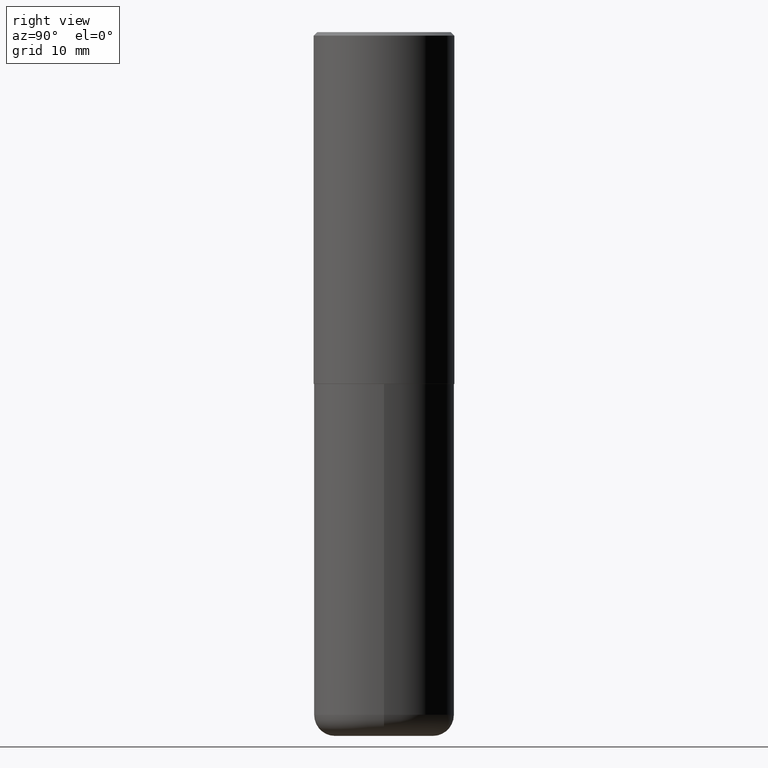
[diagram: clean part render]
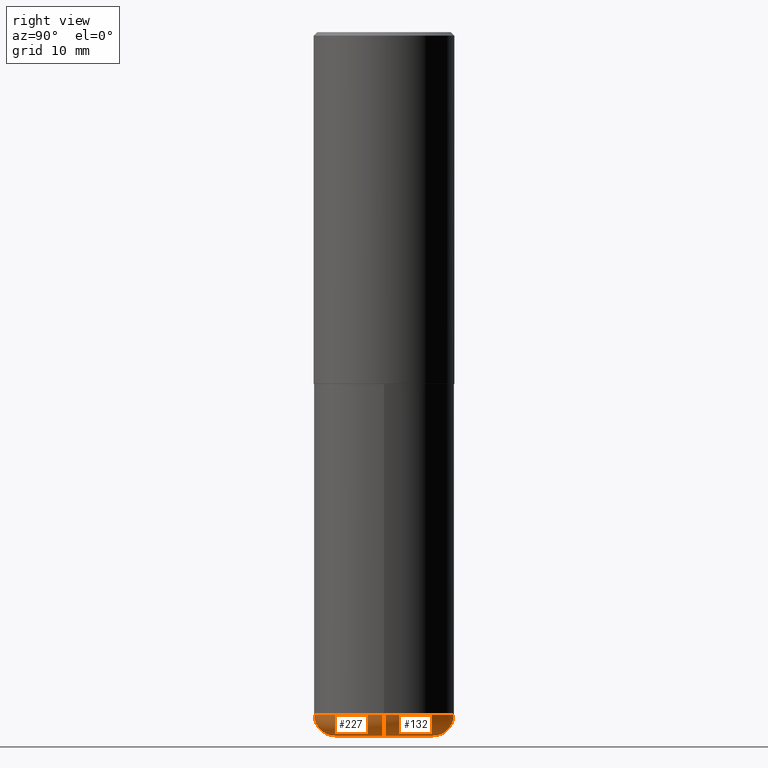
[diagram: same view with one multi-face feature highlighted, each face labeled with its STEP entity id]
A machine part, right view. The highlighted faces form ONE feature: a constant-radius fillet chain: 2 tangent blend faces with common blend radius 2.9997 mm. The faces share edges in the B-rep.
Their STEP definitions:
[1] entity #227 (Torus):
#13 = CARTESIAN_POINT ( 'NONE',  ( 9.339000823940418668E-29, -1.333361808490808928E-14, -3.818900000000000183 ) ) ;
#14 = EDGE_LOOP ( 'NONE', ( #304, #341, #73, #308 ) ) ;
#41 = CARTESIAN_POINT ( 'NONE',  ( -0.2756000000000000116, -1.137536230515325427E-14, -3.818900000000000183 ) ) ;
#46 = DIRECTION ( 'NONE',  ( -1.000000000000000000, 7.105427357601005014E-15, 0.000000000000000000 ) ) ;
#47 = VERTEX_POINT ( 'NONE', #102 ) ;
#48 = CARTESIAN_POINT ( 'NONE',  ( -0.2756000000000000116, -1.116195879274560421E-14, -3.937000000000000277 ) ) ;
#73 = ORIENTED_EDGE ( 'NONE', *, *, #375, .T. ) ;
#81 = CARTESIAN_POINT ( 'NONE',  ( 9.627810689950883669E-29, -1.374596203102546341E-14, -3.937000000000000277 ) ) ;
#94 = CIRCLE ( 'NONE', #250, 0.1180999999999999966 ) ;
#101 = AXIS2_PLACEMENT_3D ( 'NONE', #119, #109, #336 ) ;
#102 = CARTESIAN_POINT ( 'NONE',  ( -0.3937000000000000499, -1.053621133422057529E-14, -3.818900000000000183 ) ) ;
#103 = EDGE_CURVE ( 'NONE', #150, #47, #94, .T. ) ;
#108 = EDGE_CURVE ( 'NONE', #150, #291, #295, .T. ) ;
#109 = DIRECTION ( 'NONE',  ( -2.445468806185136597E-29, 3.491481338843145583E-15, 1.000000000000000000 ) ) ;
#115 = DIRECTION ( 'NONE',  ( -2.445468806185136597E-29, 3.491481338843145583E-15, 1.000000000000000000 ) ) ;
#116 = AXIS2_PLACEMENT_3D ( 'NONE', #81, #115, #236 ) ;
#119 = CARTESIAN_POINT ( 'NONE',  ( 9.339000823940418668E-29, -1.333361808490808928E-14, -3.818900000000000183 ) ) ;
#121 = CARTESIAN_POINT ( 'NONE',  ( 0.2756000000000000116, -1.567046654499579837E-14, -3.937000000000000277 ) ) ;
#128 = DIRECTION ( 'NONE',  ( 1.000000000000000000, -6.982962677686273021E-15, 0.000000000000000000 ) ) ;
#150 = VERTEX_POINT ( 'NONE', #48 ) ;
#191 = TOROIDAL_SURFACE ( 'NONE', #101, 0.2756000000000000116, 0.1181000000000000105 ) ;
#201 = EDGE_CURVE ( 'NONE', #47, #228, #305, .T. ) ;
#213 = AXIS2_PLACEMENT_3D ( 'NONE', #13, #397, #292 ) ;
#222 = AXIS2_PLACEMENT_3D ( 'NONE', #313, #282, #128 ) ;
#227 = ADVANCED_FACE ( 'NONE', ( #404 ), #191, .T. ) ;
#228 = VERTEX_POINT ( 'NONE', #366 ) ;
#236 = DIRECTION ( 'NONE',  ( 1.000000000000000000, -6.982962677686265922E-15, 0.000000000000000000 ) ) ;
#242 = DIRECTION ( 'NONE',  ( 7.105427357601001859E-15, 1.000000000000000000, -3.491481338843145583E-15 ) ) ;
#250 = AXIS2_PLACEMENT_3D ( 'NONE', #41, #242, #46 ) ;
#282 = DIRECTION ( 'NONE',  ( -6.982962677686266711E-15, -1.000000000000000000, 3.491481338843145583E-15 ) ) ;
#291 = VERTEX_POINT ( 'NONE', #121 ) ;
#292 = DIRECTION ( 'NONE',  ( 1.000000000000000000, -6.982962677686267499E-15, 0.000000000000000000 ) ) ;
#295 = CIRCLE ( 'NONE', #116, 0.2756000000000000116 ) ;
#304 = ORIENTED_EDGE ( 'NONE', *, *, #103, .F. ) ;
#305 = CIRCLE ( 'NONE', #213, 0.3937000000000000499 ) ;
#308 = ORIENTED_EDGE ( 'NONE', *, *, #201, .F. ) ;
#313 = CARTESIAN_POINT ( 'NONE',  ( 0.2756000000000000116, -1.525812259887842581E-14, -3.818900000000000183 ) ) ;
#336 = DIRECTION ( 'NONE',  ( 1.000000000000000000, -6.982962677686268288E-15, 4.883557194083112901E-29 ) ) ;
#341 = ORIENTED_EDGE ( 'NONE', *, *, #108, .T. ) ;
#366 = CARTESIAN_POINT ( 'NONE',  ( 0.3937000000000000499, -1.608281049111317408E-14, -3.818900000000000183 ) ) ;
#375 = EDGE_CURVE ( 'NONE', #291, #228, #403, .T. ) ;
#397 = DIRECTION ( 'NONE',  ( -2.445468806185136597E-29, 3.491481338843145583E-15, 1.000000000000000000 ) ) ;
#403 = CIRCLE ( 'NONE', #222, 0.1180999999999999966 ) ;
#404 = FACE_OUTER_BOUND ( 'NONE', #14, .T. ) ;
[2] entity #132 (Torus):
#10 = DIRECTION ( 'NONE',  ( 1.000000000000000000, -6.982962677686268288E-15, 4.883557194083112901E-29 ) ) ;
#35 = ORIENTED_EDGE ( 'NONE', *, *, #103, .T. ) ;
#41 = CARTESIAN_POINT ( 'NONE',  ( -0.2756000000000000116, -1.137536230515325427E-14, -3.818900000000000183 ) ) ;
#46 = DIRECTION ( 'NONE',  ( -1.000000000000000000, 7.105427357601005014E-15, 0.000000000000000000 ) ) ;
#47 = VERTEX_POINT ( 'NONE', #102 ) ;
#48 = CARTESIAN_POINT ( 'NONE',  ( -0.2756000000000000116, -1.116195879274560421E-14, -3.937000000000000277 ) ) ;
#50 = DIRECTION ( 'NONE',  ( 1.000000000000000000, -6.982962677686267499E-15, 0.000000000000000000 ) ) ;
#88 = DIRECTION ( 'NONE',  ( -2.445468806185136597E-29, 3.491481338843145583E-15, 1.000000000000000000 ) ) ;
#94 = CIRCLE ( 'NONE', #250, 0.1180999999999999966 ) ;
#102 = CARTESIAN_POINT ( 'NONE',  ( -0.3937000000000000499, -1.053621133422057529E-14, -3.818900000000000183 ) ) ;
#103 = EDGE_CURVE ( 'NONE', #150, #47, #94, .T. ) ;
#121 = CARTESIAN_POINT ( 'NONE',  ( 0.2756000000000000116, -1.567046654499579837E-14, -3.937000000000000277 ) ) ;
#128 = DIRECTION ( 'NONE',  ( 1.000000000000000000, -6.982962677686273021E-15, 0.000000000000000000 ) ) ;
#132 = ADVANCED_FACE ( 'NONE', ( #372 ), #411, .T. ) ;
#136 = ORIENTED_EDGE ( 'NONE', *, *, #362, .T. ) ;
#150 = VERTEX_POINT ( 'NONE', #48 ) ;
#154 = CARTESIAN_POINT ( 'NONE',  ( 9.339000823940418668E-29, -1.333361808490808928E-14, -3.818900000000000183 ) ) ;
#160 = ORIENTED_EDGE ( 'NONE', *, *, #293, .F. ) ;
#166 = AXIS2_PLACEMENT_3D ( 'NONE', #380, #414, #189 ) ;
#180 = AXIS2_PLACEMENT_3D ( 'NONE', #238, #271, #10 ) ;
#189 = DIRECTION ( 'NONE',  ( 1.000000000000000000, -6.982962677686265922E-15, 0.000000000000000000 ) ) ;
#196 = AXIS2_PLACEMENT_3D ( 'NONE', #154, #88, #50 ) ;
#222 = AXIS2_PLACEMENT_3D ( 'NONE', #313, #282, #128 ) ;
#228 = VERTEX_POINT ( 'NONE', #366 ) ;
#238 = CARTESIAN_POINT ( 'NONE',  ( 9.339000823940418668E-29, -1.333361808490808928E-14, -3.818900000000000183 ) ) ;
#242 = DIRECTION ( 'NONE',  ( 7.105427357601001859E-15, 1.000000000000000000, -3.491481338843145583E-15 ) ) ;
#250 = AXIS2_PLACEMENT_3D ( 'NONE', #41, #242, #46 ) ;
#271 = DIRECTION ( 'NONE',  ( -2.445468806185136597E-29, 3.491481338843145583E-15, 1.000000000000000000 ) ) ;
#282 = DIRECTION ( 'NONE',  ( -6.982962677686266711E-15, -1.000000000000000000, 3.491481338843145583E-15 ) ) ;
#291 = VERTEX_POINT ( 'NONE', #121 ) ;
#293 = EDGE_CURVE ( 'NONE', #228, #47, #376, .T. ) ;
#296 = CIRCLE ( 'NONE', #166, 0.2756000000000000116 ) ;
#313 = CARTESIAN_POINT ( 'NONE',  ( 0.2756000000000000116, -1.525812259887842581E-14, -3.818900000000000183 ) ) ;
#317 = EDGE_LOOP ( 'NONE', ( #136, #35, #160, #405 ) ) ;
#362 = EDGE_CURVE ( 'NONE', #291, #150, #296, .T. ) ;
#366 = CARTESIAN_POINT ( 'NONE',  ( 0.3937000000000000499, -1.608281049111317408E-14, -3.818900000000000183 ) ) ;
#372 = FACE_OUTER_BOUND ( 'NONE', #317, .T. ) ;
#375 = EDGE_CURVE ( 'NONE', #291, #228, #403, .T. ) ;
#376 = CIRCLE ( 'NONE', #196, 0.3937000000000000499 ) ;
#380 = CARTESIAN_POINT ( 'NONE',  ( 9.627810689950883669E-29, -1.374596203102546341E-14, -3.937000000000000277 ) ) ;
#403 = CIRCLE ( 'NONE', #222, 0.1180999999999999966 ) ;
#405 = ORIENTED_EDGE ( 'NONE', *, *, #375, .F. ) ;
#411 = TOROIDAL_SURFACE ( 'NONE', #180, 0.2756000000000000116, 0.1181000000000000105 ) ;
#414 = DIRECTION ( 'NONE',  ( -2.445468806185136597E-29, 3.491481338843145583E-15, 1.000000000000000000 ) ) ;